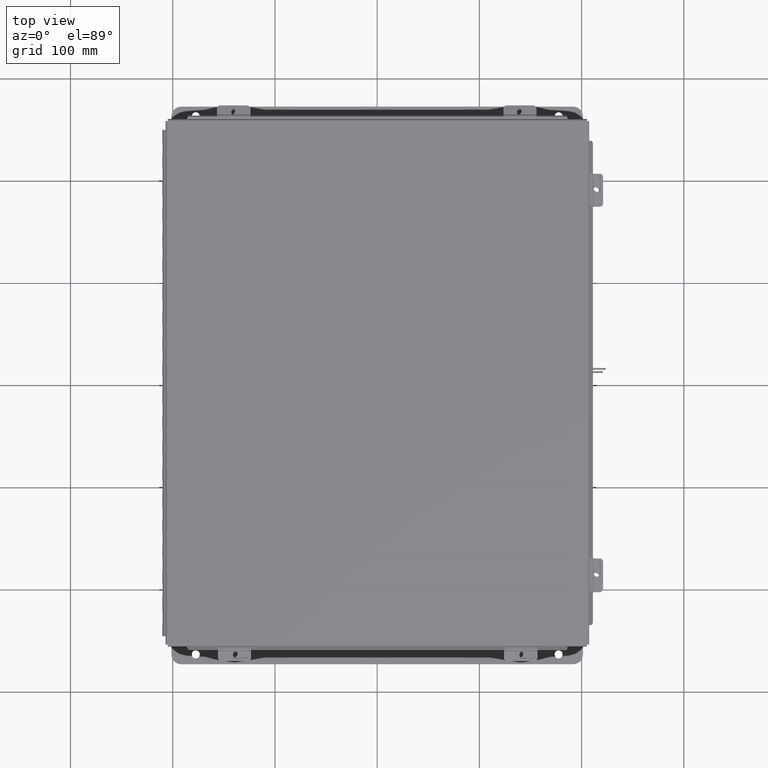
[diagram: clean part render]
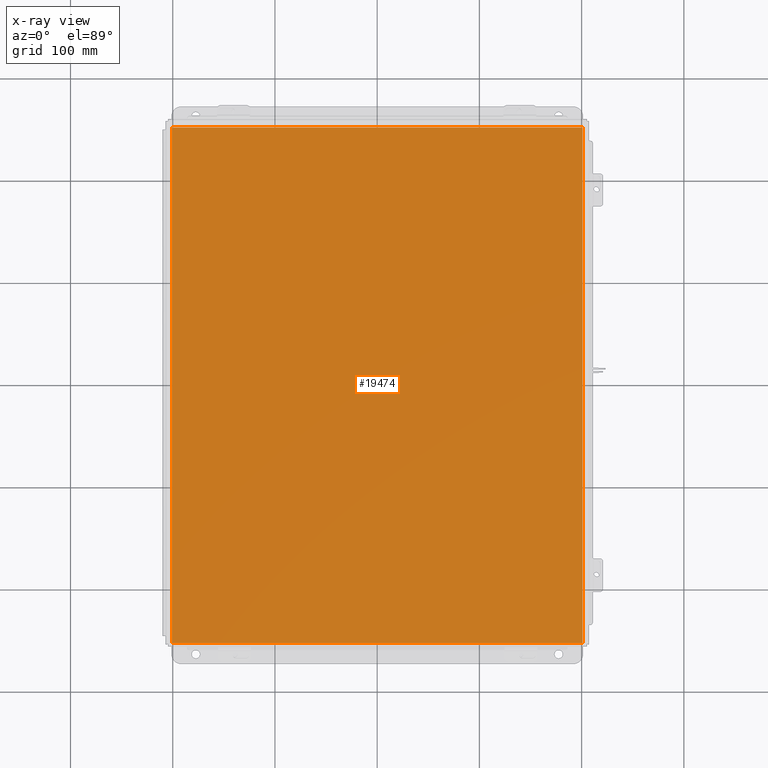
[diagram: x-ray — body ghosted, one internal face saturated and labeled with its STEP entity id]
A machine part, top view, then the same camera in x-ray: the body is ghosted and one INTERNAL B-rep face — a face not visible from any outside direction — is saturated and labeled: STEP entity #19474.
In plain terms, the highlighted planar face has unit normal (0, 0, -1).
Its self-contained STEP definition (entity closure, byte-faithful):
#197 = CARTESIAN_POINT ( 'NONE',  ( -7.999999999999996400, -9.925299999999998200, 0.0000000000000000000 ) ) ;
#1263 = CARTESIAN_POINT ( 'NONE',  ( 0.0000000000000000000, 0.0000000000000000000, 0.0000000000000000000 ) ) ;
#2231 = EDGE_CURVE ( 'NONE', #22345, #5591, #11121, .T. ) ;
#2417 = ORIENTED_EDGE ( 'NONE', *, *, #20851, .F. ) ;
#2488 = VECTOR ( 'NONE', #5962, 39.37007874015748100 ) ;
#4495 = VECTOR ( 'NONE', #19183, 39.37007874015748100 ) ;
#4700 = PLANE ( 'NONE',  #17762 ) ;
#5570 = CARTESIAN_POINT ( 'NONE',  ( 7.912300000000002800, 9.925299999999996500, 4.268512490100411300E-017 ) ) ;
#5579 = CARTESIAN_POINT ( 'NONE',  ( -7.912299999999996600, -9.925299999999998200, -1.314701846950926700E-015 ) ) ;
#5591 = VERTEX_POINT ( 'NONE', #6731 ) ;
#5962 = DIRECTION ( 'NONE',  ( 1.000000000000000000, -1.365923996832131600E-016, 0.0000000000000000000 ) ) ;
#6163 = VECTOR ( 'NONE', #21192, 39.37007874015748100 ) ;
#6438 = DIRECTION ( 'NONE',  ( 0.0000000000000000000, 0.0000000000000000000, -1.000000000000000000 ) ) ;
#6689 = VECTOR ( 'NONE', #10292, 39.37007874015748100 ) ;
#6731 = CARTESIAN_POINT ( 'NONE',  ( 7.912300000000002800, -9.925300000000000000, 4.268512490100411300E-017 ) ) ;
#8404 = EDGE_LOOP ( 'NONE', ( #22008, #18909, #2417, #13816 ) ) ;
#10292 = DIRECTION ( 'NONE',  ( -1.000000000000000000, -0.0000000000000000000, -0.0000000000000000000 ) ) ;
#10363 = VERTEX_POINT ( 'NONE', #12140 ) ;
#10388 = VERTEX_POINT ( 'NONE', #20833 ) ;
#10742 = LINE ( 'NONE', #5570, #6163 ) ;
#11121 = LINE ( 'NONE', #197, #2488 ) ;
#12140 = CARTESIAN_POINT ( 'NONE',  ( 7.912300000000002800, 9.925299999999992900, 4.268512490100411300E-017 ) ) ;
#13816 = ORIENTED_EDGE ( 'NONE', *, *, #2231, .T. ) ;
#14722 = EDGE_CURVE ( 'NONE', #10363, #5591, #10742, .T. ) ;
#17264 = CARTESIAN_POINT ( 'NONE',  ( -7.999999999999996400, 9.925299999999998200, 0.0000000000000000000 ) ) ;
#17416 = CARTESIAN_POINT ( 'NONE',  ( -7.912299999999996600, -9.925299999999998200, -1.314701846950926700E-015 ) ) ;
#17762 = AXIS2_PLACEMENT_3D ( 'NONE', #1263, #6438, #18571 ) ;
#18310 = LINE ( 'NONE', #17416, #4495 ) ;
#18571 = DIRECTION ( 'NONE',  ( -1.000000000000000000, 0.0000000000000000000, -0.0000000000000000000 ) ) ;
#18909 = ORIENTED_EDGE ( 'NONE', *, *, #19040, .T. ) ;
#19040 = EDGE_CURVE ( 'NONE', #10363, #10388, #20551, .T. ) ;
#19183 = DIRECTION ( 'NONE',  ( -0.0000000000000000000, 1.000000000000000000, 8.208677865577646300E-017 ) ) ;
#19474 = ADVANCED_FACE ( 'NONE', ( #21066 ), #4700, .F. ) ;
#20551 = LINE ( 'NONE', #17264, #6689 ) ;
#20833 = CARTESIAN_POINT ( 'NONE',  ( -7.912299999999996600, 9.925299999999998200, 3.158699242674304400E-016 ) ) ;
#20851 = EDGE_CURVE ( 'NONE', #22345, #10388, #18310, .T. ) ;
#21066 = FACE_OUTER_BOUND ( 'NONE', #8404, .T. ) ;
#21192 = DIRECTION ( 'NONE',  ( -0.0000000000000000000, -1.000000000000000000, -0.0000000000000000000 ) ) ;
#22008 = ORIENTED_EDGE ( 'NONE', *, *, #14722, .F. ) ;
#22345 = VERTEX_POINT ( 'NONE', #5579 ) ;